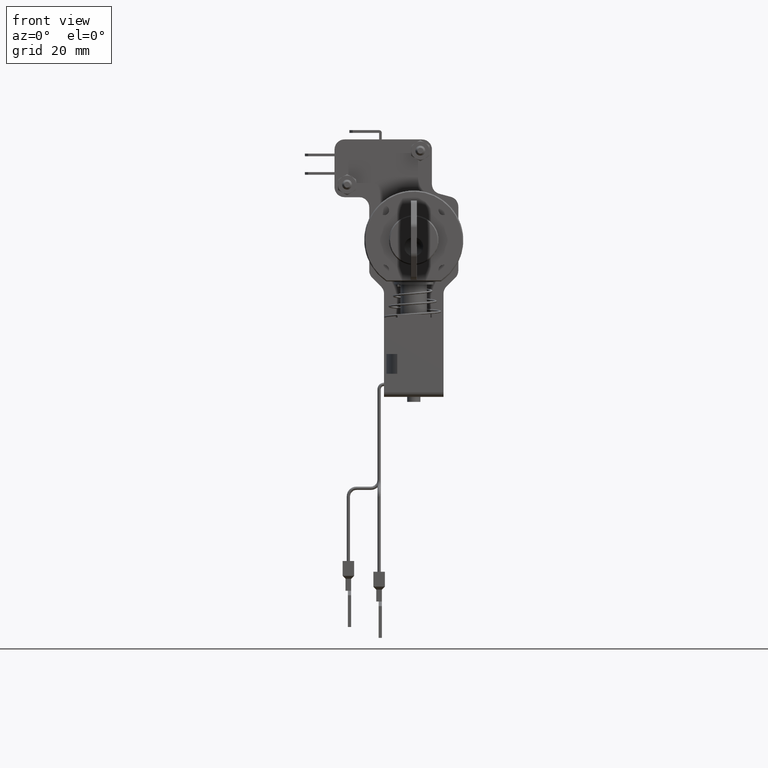
[diagram: clean part render]
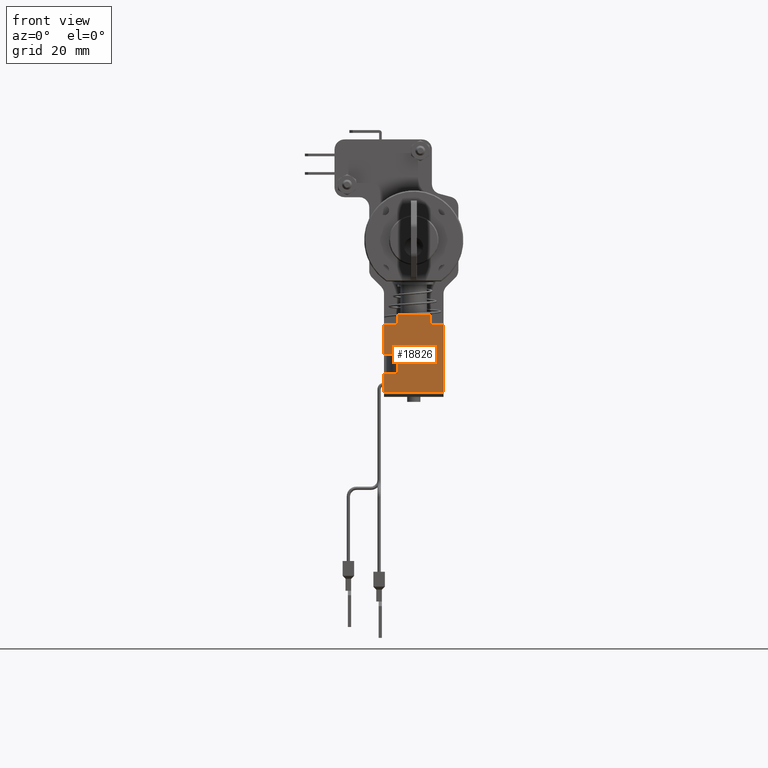
[diagram: same view with one face highlighted and labeled with its STEP entity id]
A machine part, front view. The second image highlights one B-rep face of the part: STEP entity #18826.
In plain terms, the highlighted face is a freeform B-spline surface patch.
Its self-contained STEP definition (entity closure, byte-faithful):
#18660=CARTESIAN_POINT('',(5.0,-9.0,-25.500000000000000));
#18661=VERTEX_POINT('',#18660);
#18702=CARTESIAN_POINT('',(5.0,9.0,-25.500000000000000));
#18703=VERTEX_POINT('',#18702);
#18709=CARTESIAN_POINT('',(5.0,5.000000000000091,-25.500000000000000));
#18710=VERTEX_POINT('',#18709);
#18711=CARTESIAN_POINT('',(5.0,9.0,-25.500000000000000));
#18712=CARTESIAN_POINT('',(5.0,5.000000000000091,-25.500000000000000));
#18713=QUASI_UNIFORM_CURVE('',1,(#18711,#18712),.UNSPECIFIED.,.F.,.U.);
#18714=EDGE_CURVE('',#18703,#18710,#18713,.T.);
#18730=CARTESIAN_POINT('',(5.0,-4.999999999999920,-25.500000000000000));
#18731=VERTEX_POINT('',#18730);
#18737=CARTESIAN_POINT('',(5.0,-9.0,-25.500000000000000));
#18738=CARTESIAN_POINT('',(5.0,-4.999999999999920,-25.500000000000000));
#18739=QUASI_UNIFORM_CURVE('',1,(#18737,#18738),.UNSPECIFIED.,.F.,.U.);
#18740=EDGE_CURVE('',#18661,#18731,#18739,.T.);
#18751=CARTESIAN_POINT('',(5.0,-9.899099965112509,-21.326175045547561));
#18752=CARTESIAN_POINT('',(5.0,-9.899099965112509,-47.173825584771571));
#18753=CARTESIAN_POINT('',(5.0,9.899100447910131,-21.326175045547561));
#18754=CARTESIAN_POINT('',(5.0,9.899100447910131,-47.173825584771571));
#18755=B_SPLINE_SURFACE_WITH_KNOTS('',1,1,((#18751,#18753),(#18752,#18754)),.UNSPECIFIED.,.F.,.F.,.U.,(2,2),(2,2),(0.0,25.847650539224009),(0.0,19.798200413022641),.UNSPECIFIED.);
#18756=CARTESIAN_POINT('',(5.0,5.000000000000091,-22.500000000000000));
#18757=VERTEX_POINT('',#18756);
#18758=CARTESIAN_POINT('',(5.0,5.000000000000091,-25.500000000000000));
#18759=CARTESIAN_POINT('',(5.0,5.000000000000091,-22.500000000000000));
#18760=QUASI_UNIFORM_CURVE('',1,(#18758,#18759),.UNSPECIFIED.,.F.,.U.);
#18761=EDGE_CURVE('',#18710,#18757,#18760,.T.);
#18762=ORIENTED_EDGE('',*,*,#18761,.F.);
#18763=ORIENTED_EDGE('',*,*,#18714,.F.);
#18764=CARTESIAN_POINT('',(5.0,9.0,-34.500000000000000));
#18765=VERTEX_POINT('',#18764);
#18766=CARTESIAN_POINT('',(5.0,9.0,-34.500000000000000));
#18767=CARTESIAN_POINT('',(5.0,9.0,-25.500000000000000));
#18768=QUASI_UNIFORM_CURVE('',1,(#18766,#18767),.UNSPECIFIED.,.F.,.U.);
#18769=EDGE_CURVE('',#18765,#18703,#18768,.T.);
#18770=ORIENTED_EDGE('',*,*,#18769,.F.);
#18771=CARTESIAN_POINT('',(5.0,5.000000000000091,-34.500000000000000));
#18772=VERTEX_POINT('',#18771);
#18773=CARTESIAN_POINT('',(5.0,9.0,-34.500000000000000));
#18774=CARTESIAN_POINT('',(5.0,5.000000000000091,-34.500000000000000));
#18775=QUASI_UNIFORM_CURVE('',1,(#18773,#18774),.UNSPECIFIED.,.F.,.U.);
#18776=EDGE_CURVE('',#18765,#18772,#18775,.T.);
#18777=ORIENTED_EDGE('',*,*,#18776,.T.);
#18778=CARTESIAN_POINT('',(5.0,5.000000000000091,-40.500000000000000));
#18779=VERTEX_POINT('',#18778);
#18780=CARTESIAN_POINT('',(5.0,5.000000000000091,-34.500000000000000));
#18781=CARTESIAN_POINT('',(5.0,5.000000000000091,-40.500000000000000));
#18782=QUASI_UNIFORM_CURVE('',1,(#18780,#18781),.UNSPECIFIED.,.F.,.U.);
#18783=EDGE_CURVE('',#18772,#18779,#18782,.T.);
#18784=ORIENTED_EDGE('',*,*,#18783,.T.);
#18785=CARTESIAN_POINT('',(5.0,9.0,-40.500000000000000));
#18786=VERTEX_POINT('',#18785);
#18787=CARTESIAN_POINT('',(5.0,5.000000000000091,-40.500000000000000));
#18788=CARTESIAN_POINT('',(5.0,9.0,-40.500000000000000));
#18789=QUASI_UNIFORM_CURVE('',1,(#18787,#18788),.UNSPECIFIED.,.F.,.U.);
#18790=EDGE_CURVE('',#18779,#18786,#18789,.T.);
#18791=ORIENTED_EDGE('',*,*,#18790,.T.);
#18792=CARTESIAN_POINT('',(5.0,9.0,-46.0));
#18793=VERTEX_POINT('',#18792);
#18794=CARTESIAN_POINT('',(5.0,9.0,-46.0));
#18795=CARTESIAN_POINT('',(5.0,9.0,-40.500000000000000));
#18796=QUASI_UNIFORM_CURVE('',1,(#18794,#18795),.UNSPECIFIED.,.F.,.U.);
#18797=EDGE_CURVE('',#18793,#18786,#18796,.T.);
#18798=ORIENTED_EDGE('',*,*,#18797,.F.);
#18799=CARTESIAN_POINT('',(5.0,-9.0,-46.0));
#18800=VERTEX_POINT('',#18799);
#18801=CARTESIAN_POINT('',(5.0,9.0,-46.0));
#18802=CARTESIAN_POINT('',(5.0,-9.0,-46.0));
#18803=QUASI_UNIFORM_CURVE('',1,(#18801,#18802),.UNSPECIFIED.,.F.,.U.);
#18804=EDGE_CURVE('',#18793,#18800,#18803,.T.);
#18805=ORIENTED_EDGE('',*,*,#18804,.T.);
#18806=CARTESIAN_POINT('',(5.0,-9.0,-46.0));
#18807=CARTESIAN_POINT('',(5.0,-9.0,-25.500000000000000));
#18808=QUASI_UNIFORM_CURVE('',1,(#18806,#18807),.UNSPECIFIED.,.F.,.U.);
#18809=EDGE_CURVE('',#18800,#18661,#18808,.T.);
#18810=ORIENTED_EDGE('',*,*,#18809,.T.);
#18811=ORIENTED_EDGE('',*,*,#18740,.T.);
#18812=CARTESIAN_POINT('',(5.0,-4.999999999999920,-22.500000000000000));
#18813=VERTEX_POINT('',#18812);
#18814=CARTESIAN_POINT('',(5.0,-4.999999999999920,-25.500000000000000));
#18815=CARTESIAN_POINT('',(5.0,-4.999999999999920,-22.500000000000000));
#18816=QUASI_UNIFORM_CURVE('',1,(#18814,#18815),.UNSPECIFIED.,.F.,.U.);
#18817=EDGE_CURVE('',#18731,#18813,#18816,.T.);
#18818=ORIENTED_EDGE('',*,*,#18817,.T.);
#18819=CARTESIAN_POINT('',(5.0,5.000000000000091,-22.500000000000000));
#18820=CARTESIAN_POINT('',(5.0,-4.999999999999920,-22.500000000000000));
#18821=QUASI_UNIFORM_CURVE('',1,(#18819,#18820),.UNSPECIFIED.,.F.,.U.);
#18822=EDGE_CURVE('',#18757,#18813,#18821,.T.);
#18823=ORIENTED_EDGE('',*,*,#18822,.F.);
#18824=EDGE_LOOP('',(#18762,#18763,#18770,#18777,#18784,#18791,#18798,#18805,#18810,#18811,#18818,#18823));
#18825=FACE_OUTER_BOUND('',#18824,.T.);
#18826=ADVANCED_FACE('',(#18825),#18755,.F.);